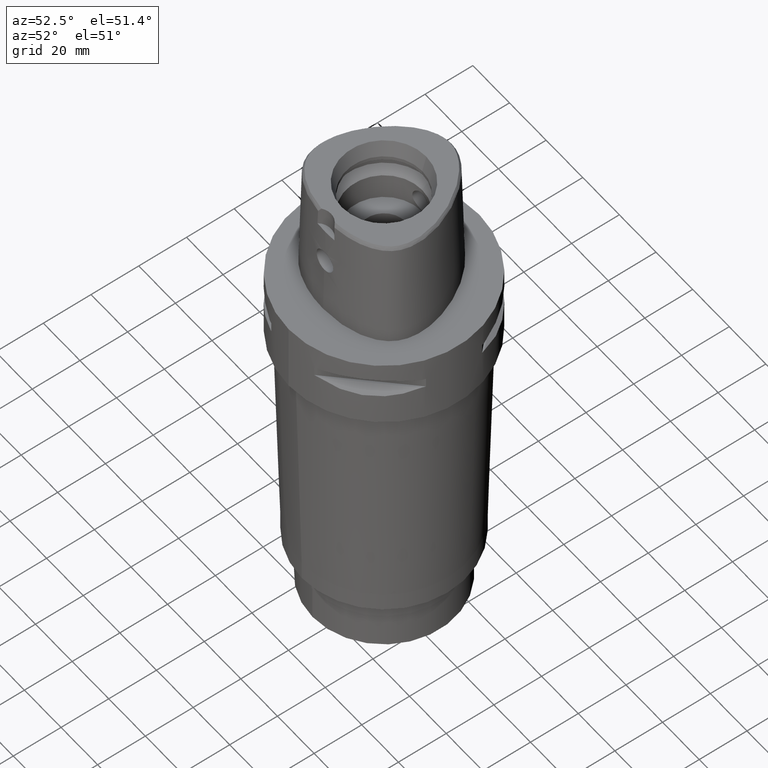
[diagram: clean part render]
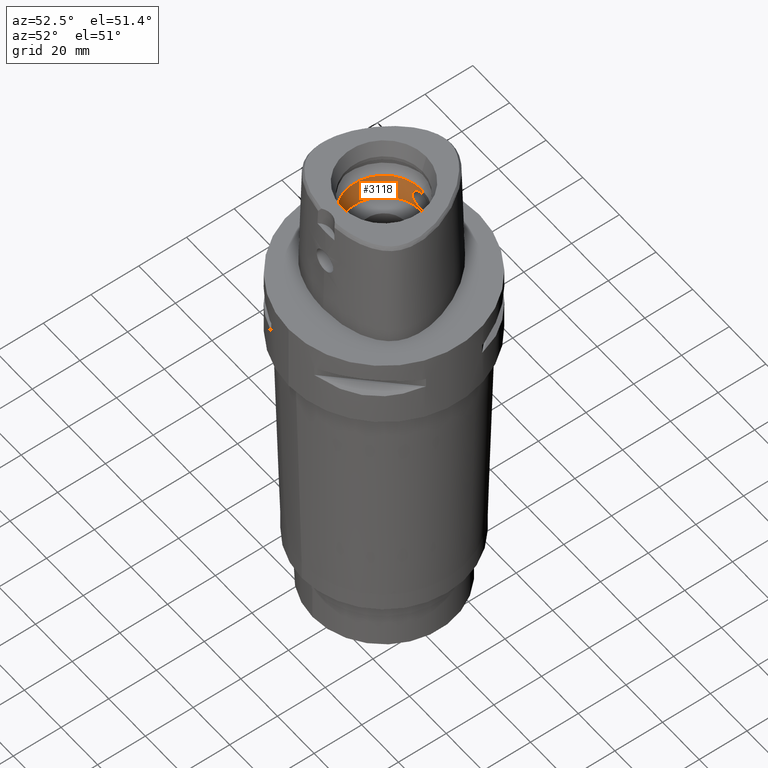
[diagram: same view with one face highlighted and labeled with its STEP entity id]
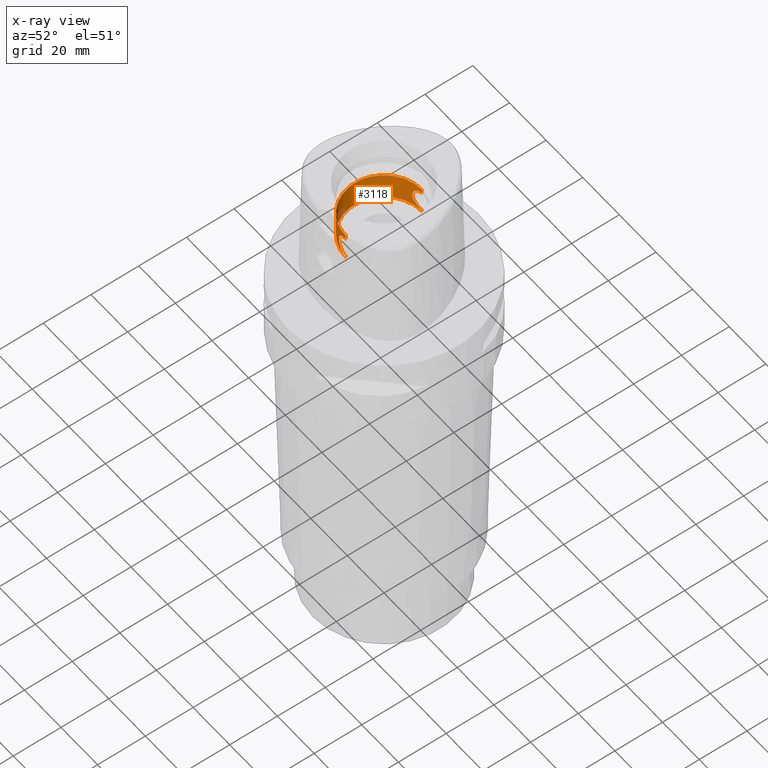
[diagram: x-ray of the same camera — body ghosted, the highlighted face saturated]
A machine part, auxiliary view. The second image highlights one B-rep face of the part: STEP entity #3118.
The next image is the same camera in x-ray: the body ghosted, the highlighted face saturated — about 4% of this face is hidden behind the body in this view.
In plain terms, the highlighted cylindrical surface (partial cylindrical patch) has radius 16 mm, axis along (0, 0, -1).
Its self-contained STEP definition (entity closure, byte-faithful):
#922=CARTESIAN_POINT('',(0.E0,0.E0,2.E1));
#923=DIRECTION('',(0.E0,0.E0,-1.E0));
#924=DIRECTION('',(0.E0,-1.E0,0.E0));
#925=AXIS2_PLACEMENT_3D('',#922,#923,#924);
#946=CARTESIAN_POINT('',(0.E0,1.6E1,2.045E1));
#960=CARTESIAN_POINT('',(0.E0,1.6E1,2.955E1));
#965=DIRECTION('',(0.E0,0.E0,1.E0));
#966=VECTOR('',#965,1.95E0);
#967=CARTESIAN_POINT('',(0.E0,1.6E1,2.955E1));
#968=LINE('',#967,#966);
#986=CARTESIAN_POINT('',(0.E0,-1.6E1,2.045E1));
#991=DIRECTION('',(0.E0,0.E0,1.E0));
#992=VECTOR('',#991,4.5E-1);
#993=CARTESIAN_POINT('',(0.E0,1.6E1,2.E1));
#994=LINE('',#993,#992);
#1012=CARTESIAN_POINT('',(0.E0,-1.6E1,2.045E1));
#1013=CARTESIAN_POINT('',(-3.988948998125E-1,-1.6E1,2.045E1));
#1014=CARTESIAN_POINT('',(-1.170987360633E0,-1.597053913087E1,
2.055220966178E1));
#1015=CARTESIAN_POINT('',(-2.269206104284E0,-1.585004398631E1,
2.099599436019E1));
#1016=CARTESIAN_POINT('',(-3.235863776278E0,-1.567764363437E1,
2.172609325033E1));
#1017=CARTESIAN_POINT('',(-3.979904703448E0,-1.550130476977E1,
2.268481060305E1));
#1018=CARTESIAN_POINT('',(-4.449784393742E0,-1.536976417383E1,
2.382040560353E1));
#1019=CARTESIAN_POINT('',(-4.600141431500E0,-1.532423574871E1,
2.500311963522E1));
#1020=CARTESIAN_POINT('',(-4.449652105277E0,-1.536975233797E1,
2.617039791798E1));
#1021=CARTESIAN_POINT('',(-3.998276541425E0,-1.549625109279E1,
2.727843841681E1));
#1022=CARTESIAN_POINT('',(-3.274688999697E0,-1.566934067946E1,
2.823518132932E1));
#1023=CARTESIAN_POINT('',(-2.304725749980E0,-1.584538307429E1,
2.898660912360E1));
#1024=CARTESIAN_POINT('',(-1.179316718045E0,-1.597044866855E1,
2.944760162686E1));
#1025=CARTESIAN_POINT('',(-4.011673779186E-1,-1.6E1,2.955E1));
#1026=CARTESIAN_POINT('',(0.E0,-1.6E1,2.955E1));
#1031=DIRECTION('',(0.E0,0.E0,1.E0));
#1032=VECTOR('',#1031,1.95E0);
#1033=CARTESIAN_POINT('',(0.E0,-1.6E1,2.955E1));
#1034=LINE('',#1033,#1032);
#1038=CARTESIAN_POINT('',(0.E0,1.6E1,2.955E1));
#1039=CARTESIAN_POINT('',(-3.988854368759E-1,1.6E1,2.955E1));
#1040=CARTESIAN_POINT('',(-1.170962987921E0,1.597054019011E1,2.944779447969E1));
#1041=CARTESIAN_POINT('',(-2.269151986787E0,1.585005145508E1,2.900403236787E1));
#1042=CARTESIAN_POINT('',(-3.235831887755E0,1.567765138962E1,2.827394962471E1));
#1043=CARTESIAN_POINT('',(-3.979933991153E0,1.550129737255E1,2.731514259268E1));
#1044=CARTESIAN_POINT('',(-4.449770091995E0,1.536976800640E1,2.617961812657E1));
#1045=CARTESIAN_POINT('',(-4.600139734699E0,1.532423627942E1,2.499694128467E1));
#1046=CARTESIAN_POINT('',(-4.449673220549E0,1.536974637474E1,2.382965812239E1));
#1047=CARTESIAN_POINT('',(-3.998261880303E0,1.549625493795E1,2.272153221716E1));
#1048=CARTESIAN_POINT('',(-3.274703198311E0,1.566933721044E1,2.176483934127E1));
#1049=CARTESIAN_POINT('',(-2.304747804114E0,1.584537985950E1,2.101340190333E1));
#1050=CARTESIAN_POINT('',(-1.179336456756E0,1.597044741960E1,2.055240325074E1));
#1051=CARTESIAN_POINT('',(-4.011754548511E-1,1.6E1,2.045E1));
#1052=CARTESIAN_POINT('',(0.E0,1.6E1,2.045E1));
#1057=DIRECTION('',(0.E0,0.E0,1.E0));
#1058=VECTOR('',#1057,4.5E-1);
#1059=CARTESIAN_POINT('',(0.E0,-1.6E1,2.E1));
#1060=LINE('',#1059,#1058);
#1156=CARTESIAN_POINT('',(0.E0,0.E0,3.15E1));
#1157=DIRECTION('',(0.E0,0.E0,1.E0));
#1158=DIRECTION('',(0.E0,1.E0,0.E0));
#1159=AXIS2_PLACEMENT_3D('',#1156,#1157,#1158);
#1743=CARTESIAN_POINT('',(0.E0,1.6E1,2.E1));
#1744=CARTESIAN_POINT('',(0.E0,-1.6E1,2.E1));
#1745=VERTEX_POINT('',#1743);
#1746=VERTEX_POINT('',#1744);
#1747=VERTEX_POINT('',#946);
#1748=VERTEX_POINT('',#960);
#1749=CARTESIAN_POINT('',(0.E0,1.6E1,3.15E1));
#1750=VERTEX_POINT('',#1749);
#1751=CARTESIAN_POINT('',(0.E0,-1.6E1,3.15E1));
#1752=VERTEX_POINT('',#1751);
#1753=CARTESIAN_POINT('',(0.E0,-1.6E1,2.955E1));
#1754=VERTEX_POINT('',#1753);
#1755=VERTEX_POINT('',#986);
#3101=CARTESIAN_POINT('',(0.E0,0.E0,5.04E1));
#3102=DIRECTION('',(0.E0,0.E0,-1.E0));
#3103=DIRECTION('',(0.E0,-1.E0,0.E0));
#3104=AXIS2_PLACEMENT_3D('',#3101,#3102,#3103);
#3105=CYLINDRICAL_SURFACE('',#3104,1.6E1);
#3107=ORIENTED_EDGE('',*,*,#3106,.T.);
#3108=ORIENTED_EDGE('',*,*,#3060,.T.);
#3110=ORIENTED_EDGE('',*,*,#3109,.F.);
#3111=ORIENTED_EDGE('',*,*,#3056,.F.);
#3112=ORIENTED_EDGE('',*,*,#3093,.T.);
#3113=ORIENTED_EDGE('',*,*,#3067,.F.);
#3114=ORIENTED_EDGE('',*,*,#3040,.F.);
#3115=ORIENTED_EDGE('',*,*,#3064,.T.);
#3116=EDGE_LOOP('',(#3107,#3108,#3110,#3111,#3112,#3113,#3114,#3115));
#3117=FACE_OUTER_BOUND('',#3116,.F.);
#926=CIRCLE('',#925,1.6E1);
#1027=B_SPLINE_CURVE_WITH_KNOTS('',3,(#1012,#1013,#1014,#1015,#1016,#1017,#1018,
#1019,#1020,#1021,#1022,#1023,#1024,#1025,#1026),.UNSPECIFIED.,.F.,.F.,(4,1,1,1,
1,1,1,1,1,1,1,1,4),(0.E0,8.333333333333E-2,1.666666666667E-1,2.5E-1,
3.333333333333E-1,4.166666666667E-1,5.E-1,5.833333333333E-1,6.666666666667E-1,
7.5E-1,8.333333333333E-1,9.166666666667E-1,1.E0),.UNSPECIFIED.);
#1053=B_SPLINE_CURVE_WITH_KNOTS('',3,(#1038,#1039,#1040,#1041,#1042,#1043,#1044,
#1045,#1046,#1047,#1048,#1049,#1050,#1051,#1052),.UNSPECIFIED.,.F.,.F.,(4,1,1,1,
1,1,1,1,1,1,1,1,4),(0.E0,8.333333333333E-2,1.666666666667E-1,2.5E-1,
3.333333333333E-1,4.166666666667E-1,5.E-1,5.833333333333E-1,6.666666666667E-1,
7.5E-1,8.333333333333E-1,9.166666666667E-1,1.E0),.UNSPECIFIED.);
#1160=CIRCLE('',#1159,1.6E1);
#3040=EDGE_CURVE('',#1746,#1745,#926,.T.);
#3056=EDGE_CURVE('',#1748,#1750,#968,.T.);
#3060=EDGE_CURVE('',#1754,#1752,#1034,.T.);
#3064=EDGE_CURVE('',#1746,#1755,#1060,.T.);
#3067=EDGE_CURVE('',#1745,#1747,#994,.T.);
#3093=EDGE_CURVE('',#1748,#1747,#1053,.T.);
#3106=EDGE_CURVE('',#1755,#1754,#1027,.T.);
#3109=EDGE_CURVE('',#1750,#1752,#1160,.T.);
#3118=ADVANCED_FACE('',(#3117),#3105,.F.);